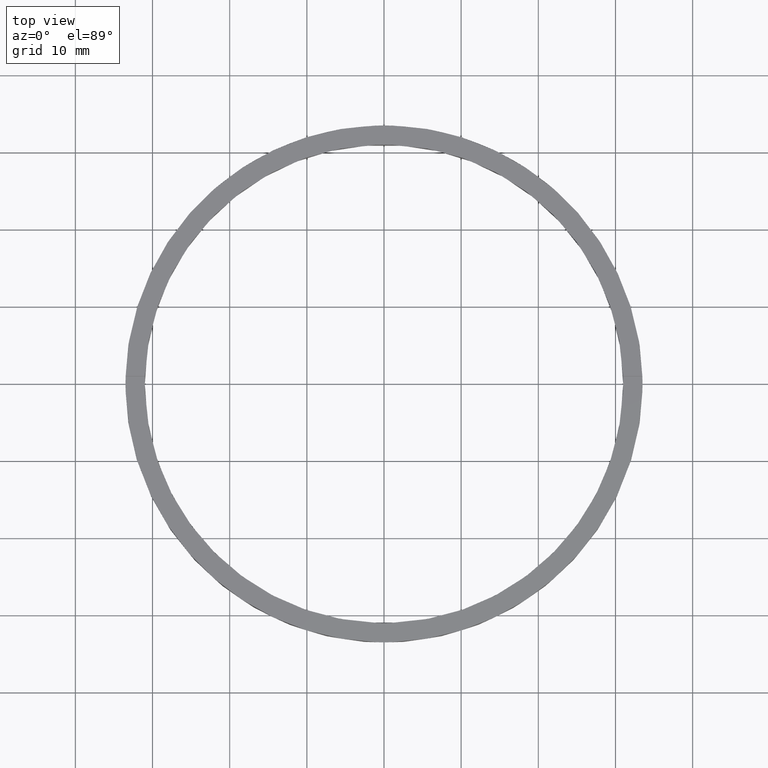
[diagram: clean part render]
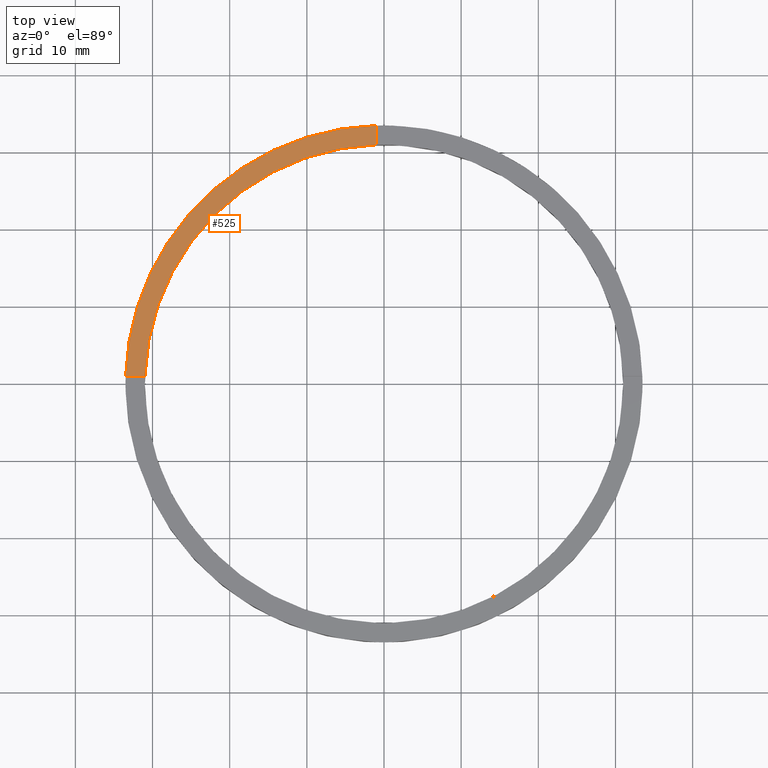
[diagram: same view with one face highlighted and labeled with its STEP entity id]
A machine part, top view. The second image highlights one B-rep face of the part: STEP entity #525.
In plain terms, the highlighted planar face has unit normal (0, 0, 1).
Its self-contained STEP definition (entity closure, byte-faithful):
#9 = DIRECTION ( 'NONE',  ( 0.000000000000000000, 0.000000000000000000, 1.000000000000000000 ) ) ;
#13 = EDGE_CURVE ( 'NONE', #188, #596, #182, .T. ) ;
#15 = EDGE_CURVE ( 'NONE', #110, #596, #704, .T. ) ;
#30 = DIRECTION ( 'NONE',  ( -0.000000000000000000, -1.000000000000000000, -0.000000000000000000 ) ) ;
#110 = VERTEX_POINT ( 'NONE', #282 ) ;
#128 = VERTEX_POINT ( 'NONE', #469 ) ;
#159 = FACE_OUTER_BOUND ( 'NONE', #369, .T. ) ;
#163 = DIRECTION ( 'NONE',  ( 0.000000000000000000, 0.000000000000000000, 1.000000000000000000 ) ) ;
#182 = CIRCLE ( 'NONE', #478, 33.50000000000000000 ) ;
#185 = ORIENTED_EDGE ( 'NONE', *, *, #15, .F. ) ;
#188 = VERTEX_POINT ( 'NONE', #739 ) ;
#189 = VECTOR ( 'NONE', #595, 1000.000000000000000 ) ;
#190 = EDGE_CURVE ( 'NONE', #128, #110, #418, .T. ) ;
#207 = DIRECTION ( 'NONE',  ( 1.000000000000000000, 0.000000000000000000, -0.000000000000000000 ) ) ;
#224 = DIRECTION ( 'NONE',  ( 1.000000000000000000, 0.000000000000000000, 0.000000000000000000 ) ) ;
#229 = DIRECTION ( 'NONE',  ( 0.000000000000000000, 0.000000000000000000, 1.000000000000000000 ) ) ;
#282 = CARTESIAN_POINT ( 'NONE',  ( -30.98386676965933617, 0.9999999999999740208, 3.000000000000000000 ) ) ;
#284 = CARTESIAN_POINT ( 'NONE',  ( -23.50000000000018829, 0.9999999999999754641, 3.000000000000000000 ) ) ;
#369 = EDGE_LOOP ( 'NONE', ( #385, #392, #185, #403 ) ) ;
#385 = ORIENTED_EDGE ( 'NONE', *, *, #685, .F. ) ;
#391 = AXIS2_PLACEMENT_3D ( 'NONE', #708, #9, #423 ) ;
#392 = ORIENTED_EDGE ( 'NONE', *, *, #13, .T. ) ;
#403 = ORIENTED_EDGE ( 'NONE', *, *, #190, .F. ) ;
#418 = CIRCLE ( 'NONE', #391, 31.00000000000000000 ) ;
#423 = DIRECTION ( 'NONE',  ( 1.000000000000000000, 0.000000000000000000, 0.000000000000000000 ) ) ;
#434 = CARTESIAN_POINT ( 'NONE',  ( 0.000000000000000000, 0.000000000000000000, 3.000000000000000000 ) ) ;
#465 = PLANE ( 'NONE',  #474 ) ;
#469 = CARTESIAN_POINT ( 'NONE',  ( -1.000000000000024647, 30.98386676965933617, 3.000000000000000000 ) ) ;
#474 = AXIS2_PLACEMENT_3D ( 'NONE', #649, #163, #207 ) ;
#478 = AXIS2_PLACEMENT_3D ( 'NONE', #434, #229, #224 ) ;
#525 = ADVANCED_FACE ( 'NONE', ( #159 ), #465, .T. ) ;
#595 = DIRECTION ( 'NONE',  ( -1.000000000000000000, -1.951563910473907735E-16, 0.000000000000000000 ) ) ;
#596 = VERTEX_POINT ( 'NONE', #733 ) ;
#649 = CARTESIAN_POINT ( 'NONE',  ( 0.000000000000000000, 0.000000000000000000, 3.000000000000000000 ) ) ;
#685 = EDGE_CURVE ( 'NONE', #188, #128, #760, .T. ) ;
#704 = LINE ( 'NONE', #284, #189 ) ;
#708 = CARTESIAN_POINT ( 'NONE',  ( 0.000000000000000000, 0.000000000000000000, 3.000000000000000000 ) ) ;
#733 = CARTESIAN_POINT ( 'NONE',  ( -33.48507130050644776, 0.9999999999999735767, 3.000000000000000000 ) ) ;
#739 = CARTESIAN_POINT ( 'NONE',  ( -1.000000000000024647, 33.48507130050644065, 3.000000000000000000 ) ) ;
#750 = CARTESIAN_POINT ( 'NONE',  ( -1.000000000000024647, 23.50000000000000000, 3.000000000000000000 ) ) ;
#758 = VECTOR ( 'NONE', #30, 1000.000000000000000 ) ;
#760 = LINE ( 'NONE', #750, #758 ) ;